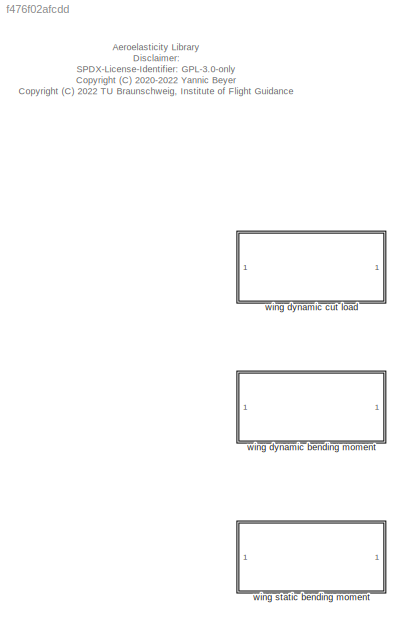
MODEL slx_f476f02afcdd
KIND library
CONFIG AbsTol = auto
CONFIG EnableMultiTasking = off
CONFIG FixedStep = auto
CONFIG MaxStep = auto
CONFIG MinStep = auto
CONFIG RelTol = 1e-3
CONFIG SampleTimeConstraint = Unconstrained
CONFIG Solver = VariableStepAuto
CONFIG SolverName = VariableStepAuto
CONFIG StartTime = 0.0
CONFIG StopTime = 10.0
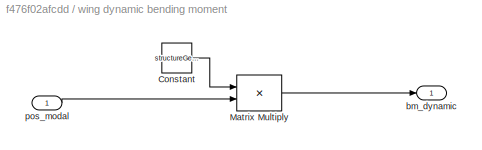
BLOCK [SubSystem] wing dynamic bending moment
  Ports = [1, 1]
  RequestExecContextInheritance = off
BLOCK [Constant] wing dynamic bending moment/Constant
  Value = structureGetBendingMomentTrafoAt(structure_red,structure,eta)
BLOCK [Product] wing dynamic bending moment/Matrix Multiply
  InputSameDT = off
  Multiplication = Matrix(*)
  OutDataTypeStr = Inherit: Inherit via internal rule
  Ports = [2, 1]
  RndMeth = Floor
  SaturateOnIntegerOverflow = off
BLOCK [Outport] wing dynamic bending moment/bm_dynamic
  IconDisplay = Port number
BLOCK [Inport] wing dynamic bending moment/pos_modal
  IconDisplay = Port number
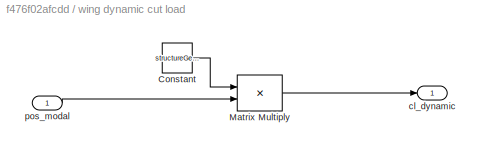
BLOCK [SubSystem] wing dynamic cut load
  Ports = [1, 1]
  RequestExecContextInheritance = off
BLOCK [Constant] wing dynamic cut load/Constant
  Value = structureGetCutLoadTrafoAt(structure_red,structure,eta,load_type,reverse_side)
  VectorParams1D = off
BLOCK [Product] wing dynamic cut load/Matrix Multiply
  InputSameDT = off
  Multiplication = Matrix(*)
  OutDataTypeStr = Inherit: Inherit via internal rule
  Ports = [2, 1]
  RndMeth = Floor
  SaturateOnIntegerOverflow = off
BLOCK [Outport] wing dynamic cut load/cl_dynamic
  IconDisplay = Port number
BLOCK [Inport] wing dynamic cut load/pos_modal
  IconDisplay = Port number
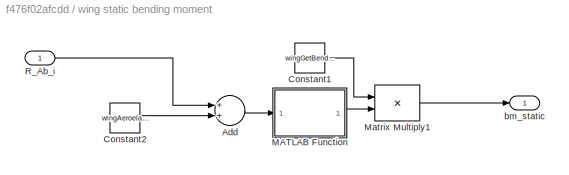
BLOCK [SubSystem] wing static bending moment
  Ports = [1, 1]
  RequestExecContextInheritance = off
BLOCK [Sum] wing static bending moment/Add
  InputSameDT = off
  OutDataTypeStr = Inherit: Inherit via internal rule
  Ports = [2, 1]
  SaturateOnIntegerOverflow = off
BLOCK [Constant] wing static bending moment/Constant1
  Value = wingGetBendingMoment(wing_main.geometry,eta)
BLOCK [Constant] wing static bending moment/Constant2
  Value = wingAeroelasticityGetGravityLoading(wing_main,structure,eye(3))
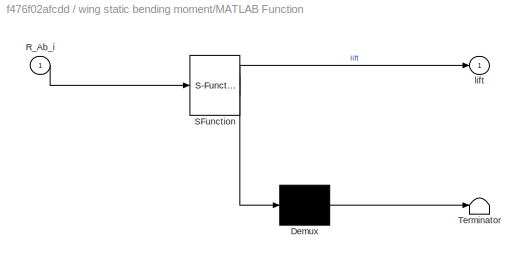
BLOCK [SubSystem] wing static bending moment/MATLAB Function
  ErrorFcn = Stateflow.Translate.translate
  PermitHierarchicalResolution = ExplicitOnly
  Ports = [1, 1]
  RequestExecContextInheritance = off
  SFBlockType = MATLAB Function
  TreatAsAtomicUnit = on
BLOCK [Demux] wing static bending moment/MATLAB Function/ Demux 
  Outputs = 1
  Ports = [1, 1]
BLOCK [S-Function] wing static bending moment/MATLAB Function/ SFunction 
  EnableBusSupport = on
  FunctionName = sf_sfun
  PortCounts = [1 2]
  Ports = [1, 2]
  SFcnIsStateOwnerBlock = off
  SFunctionDeploymentMode = off
  Tag = Stateflow S-Function aeroelasticity_lib 3
BLOCK [Terminator] wing static bending moment/MATLAB Function/ Terminator 
BLOCK [Inport] wing static bending moment/MATLAB Function/R_Ab_i
  IconDisplay = Port number
BLOCK [Outport] wing static bending moment/MATLAB Function/lift
  IconDisplay = Port number
BLOCK [Product] wing static bending moment/Matrix Multiply1
  InputSameDT = off
  Multiplication = Matrix(*)
  OutDataTypeStr = Inherit: Inherit via internal rule
  Ports = [2, 1]
  RndMeth = Floor
  SaturateOnIntegerOverflow = off
BLOCK [Inport] wing static bending moment/R_Ab_i
  IconDisplay = Port number
BLOCK [Outport] wing static bending moment/bm_static
  IconDisplay = Port number
ANNOTATION (root): Aeroelasticity Library Disclaimer: SPDX-License-Identifier: GPL-3.0-only <copyright redacted>
LINE wing dynamic bending moment/Constant:1 -> wing dynamic bending moment/Matrix Multiply:1
LINE wing dynamic bending moment/Matrix Multiply:1 -> wing dynamic bending moment/bm_dynamic:1
LINE wing dynamic bending moment/pos_modal:1 -> wing dynamic bending moment/Matrix Multiply:2
LINE wing dynamic cut load/Constant:1 -> wing dynamic cut load/Matrix Multiply:1
LINE wing dynamic cut load/Matrix Multiply:1 -> wing dynamic cut load/cl_dynamic:1
LINE wing dynamic cut load/pos_modal:1 -> wing dynamic cut load/Matrix Multiply:2
LINE wing static bending moment/Add:1 -> wing static bending moment/MATLAB Function:1
LINE wing static bending moment/Constant1:1 -> wing static bending moment/Matrix Multiply1:1
LINE wing static bending moment/Constant2:1 -> wing static bending moment/Add:2
LINE wing static bending moment/MATLAB Function:1 -> wing static bending moment/Matrix Multiply1:2
LINE wing static bending moment/Matrix Multiply1:1 -> wing static bending moment/bm_static:1
LINE wing static bending moment/R_Ab_i:1 -> wing static bending moment/Add:1
CHART wing static bending moment/MATLAB Function states=1 transitions=1
  STATE_LABEL 'eML_blk_kernel()'
  STATE_LABEL "SCRIPT:\nfunction lift = fcn(R_Ab_i)\n\nlift = vecnorm( R_Ab_i(3,:), 2, 1 )';\n\nend\n"
